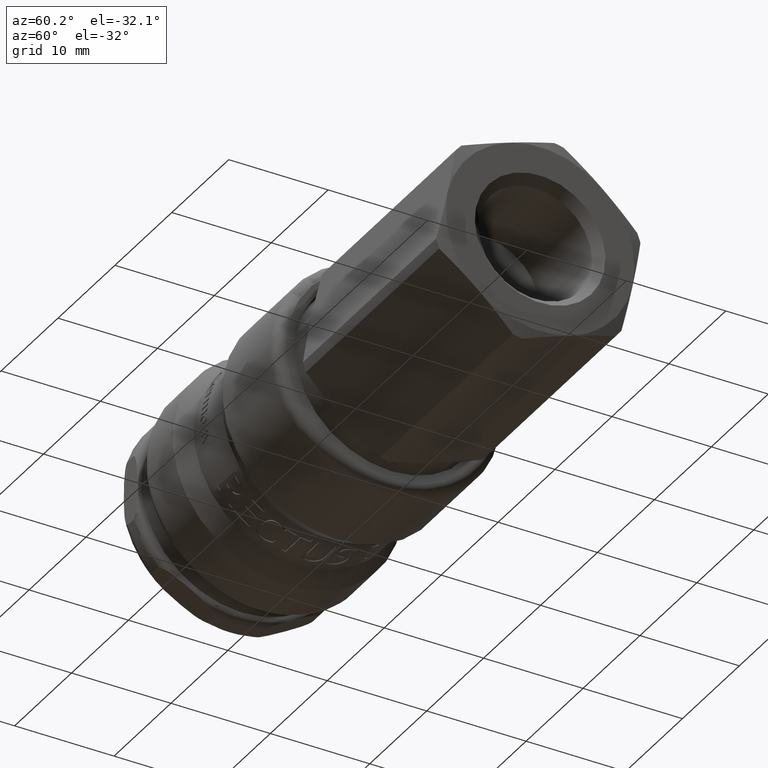
[diagram: clean part render]
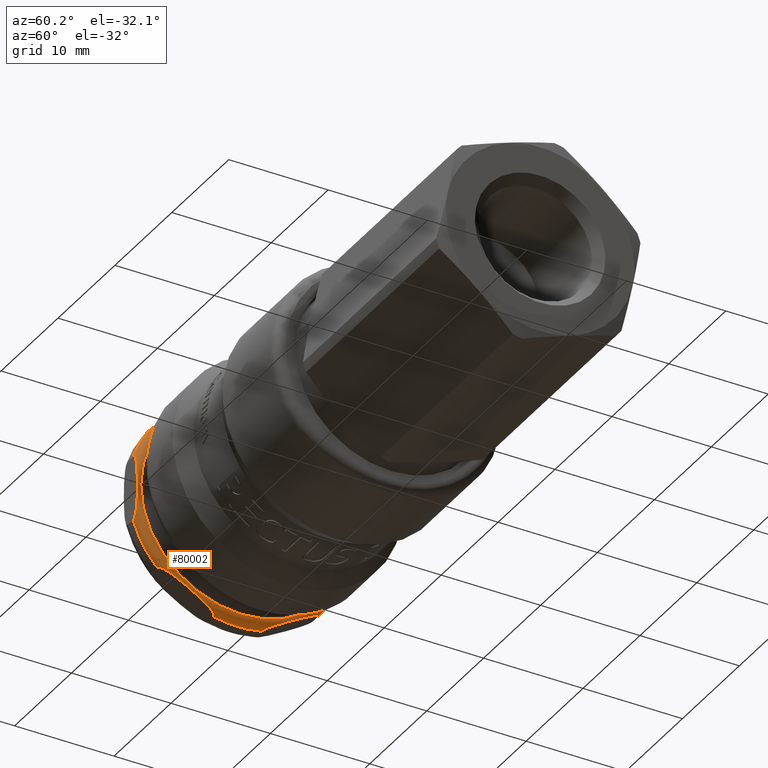
[diagram: same view with one face highlighted and labeled with its STEP entity id]
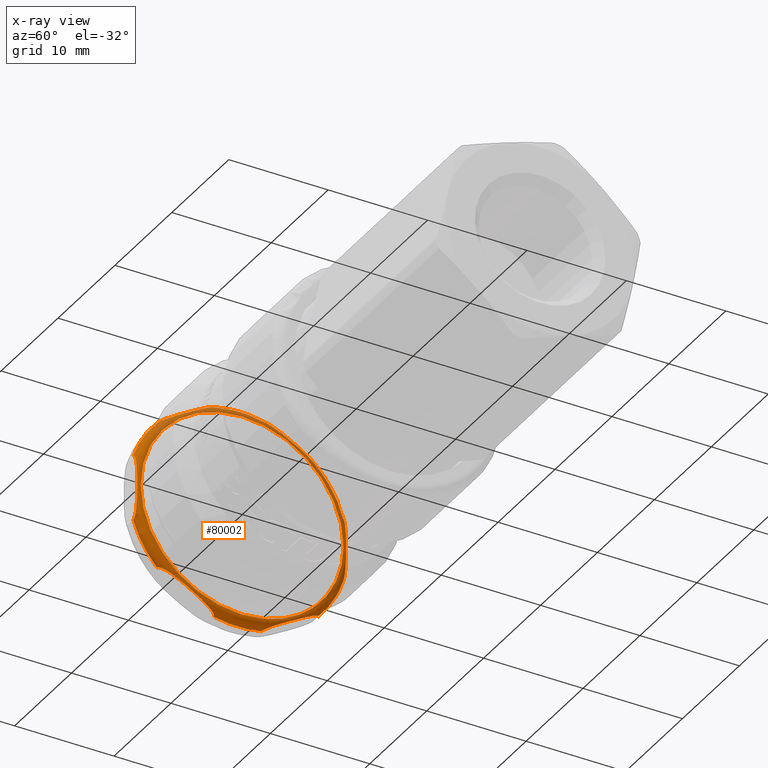
[diagram: x-ray of the same camera — body ghosted, the highlighted face saturated]
A machine part, auxiliary view. The second image highlights one B-rep face of the part: STEP entity #80002.
The next image is the same camera in x-ray: the body ghosted, the highlighted face saturated — about 35% of this face is hidden behind the body in this view.
In plain terms, the highlighted toroidal blend (fillet) surface has major radius 10.2 mm and minor (blend) radius 0.8 mm.
Its self-contained STEP definition (entity closure, byte-faithful):
#79319=CARTESIAN_POINT('',(2.5,10.199999999999999,-2.498279E-015));
#79320=VERTEX_POINT('',#79319);
#79321=CARTESIAN_POINT('',(2.5,0.0,0.0));
#79322=DIRECTION('',(-1.0,0.0,0.0));
#79323=DIRECTION('',(0.0,-1.0,0.0));
#79324=AXIS2_PLACEMENT_3D('',#79321,#79322,#79323);
#79325=CIRCLE('',#79324,10.199999999999999);
#79326=EDGE_CURVE('',#79320,#79320,#79325,.T.);
#79358=CARTESIAN_POINT('',(1.7,2.410545827099859,-10.732626370812106));
#79359=VERTEX_POINT('',#79358);
#79366=CARTESIAN_POINT('',(1.7,-2.410545827099867,-10.732626370812106));
#79367=VERTEX_POINT('',#79366);
#79368=CARTESIAN_POINT('',(1.7,0.0,0.0));
#79369=DIRECTION('',(1.0,0.0,0.0));
#79370=DIRECTION('',(0.0,-1.0,0.0));
#79371=AXIS2_PLACEMENT_3D('',#79368,#79369,#79370);
#79372=CIRCLE('',#79371,11.0);
#79373=EDGE_CURVE('',#79367,#79359,#79372,.T.);
#79432=CARTESIAN_POINT('',(1.7,10.500000000000004,3.278719262150996));
#79433=VERTEX_POINT('',#79432);
#79440=CARTESIAN_POINT('',(1.7,10.500000000000004,-3.278719262150996));
#79441=VERTEX_POINT('',#79440);
#79442=CARTESIAN_POINT('',(1.7,10.500000000000004,-3.278719262150996));
#79443=CARTESIAN_POINT('',(1.722104467915271,10.500000000000004,-3.278719262150996));
#79444=CARTESIAN_POINT('',(1.748334382194518,10.500000000000004,-3.274771300712466));
#79445=CARTESIAN_POINT('',(1.793965826045357,10.500000000000004,-3.261374599091501));
#79446=CARTESIAN_POINT('',(1.821634946150617,10.500000000000004,-3.24843931087496));
#79447=CARTESIAN_POINT('',(1.910997444381834,10.500000000000004,-3.193187925023123));
#79448=CARTESIAN_POINT('',(1.972605022011149,10.500000000000004,-3.120173886764248));
#79449=CARTESIAN_POINT('',(2.103238507919768,10.500000000000004,-2.919047819138348));
#79450=CARTESIAN_POINT('',(2.169564088821497,10.500000000000004,-2.73859163161482));
#79451=CARTESIAN_POINT('',(2.325754557692284,10.500000000000004,-2.191493105213071));
#79452=CARTESIAN_POINT('',(2.37396794591144,10.500000000000004,-1.749150668261575));
#79453=CARTESIAN_POINT('',(2.433358688630659,10.500000000000004,-0.857870751619871));
#79454=CARTESIAN_POINT('',(2.441619848709565,10.500000000000004,-0.408741346034071));
#79455=CARTESIAN_POINT('',(2.441619848709565,10.500000000000004,0.408741346034071));
#79456=CARTESIAN_POINT('',(2.433358688630659,10.500000000000004,0.857870751619871));
#79457=CARTESIAN_POINT('',(2.37396794591144,10.500000000000004,1.749150668261575));
#79458=CARTESIAN_POINT('',(2.325754557692284,10.500000000000004,2.191493105213071));
#79459=CARTESIAN_POINT('',(2.169564088821497,10.500000000000004,2.73859163161482));
#79460=CARTESIAN_POINT('',(2.103238507919768,10.500000000000004,2.919047819138348));
#79461=CARTESIAN_POINT('',(1.972605022011149,10.500000000000004,3.120173886764248));
#79462=CARTESIAN_POINT('',(1.910997444381834,10.500000000000004,3.193187925023123));
#79463=CARTESIAN_POINT('',(1.821634946150617,10.500000000000004,3.24843931087496));
#79464=CARTESIAN_POINT('',(1.793965826045357,10.500000000000004,3.261374599091501));
#79465=CARTESIAN_POINT('',(1.748334382194518,10.500000000000004,3.274771300712466));
#79466=CARTESIAN_POINT('',(1.72210446791527,10.500000000000004,3.278719262150996));
#79467=CARTESIAN_POINT('',(1.7,10.500000000000004,3.278719262150996));
#79468=B_SPLINE_CURVE_WITH_KNOTS('',3,(#79442,#79443,#79444,#79445,#79446,#79447,#79448,#79449,#79450,#79451,#79452,#79453,#79454,#79455,#79456,#79457,#79458,#79459,#79460,#79461,#79462,#79463,#79464,#79465,#79466,#79467),.UNSPECIFIED.,.F.,.U.,(4,2,2,2,2,2,2,2,2,2,2,2,4),(0.331459991565857,0.338091331940438,0.345727192601835,0.369610428621348,0.417675175511272,0.540297579321493,0.662919983131714,0.785542386941935,0.908164790752156,0.956229537642079,0.980112773661593,0.987748634322989,0.994379974697571),.UNSPECIFIED.);
#79469=EDGE_CURVE('',#79441,#79433,#79468,.T.);
#79699=CARTESIAN_POINT('',(1.7,-8.089454172900142,-7.4539071086611));
#79700=VERTEX_POINT('',#79699);
#79707=CARTESIAN_POINT('',(1.7,-10.500000000000004,-3.278719262150994));
#79708=VERTEX_POINT('',#79707);
#79709=CARTESIAN_POINT('',(1.7,0.0,0.0));
#79710=DIRECTION('',(1.0,0.0,0.0));
#79711=DIRECTION('',(0.0,-1.0,0.0));
#79712=AXIS2_PLACEMENT_3D('',#79709,#79710,#79711);
#79713=CIRCLE('',#79712,11.0);
#79714=EDGE_CURVE('',#79708,#79700,#79713,.T.);
#79731=CARTESIAN_POINT('',(1.7,-10.500000000000004,3.278719262150998));
#79732=VERTEX_POINT('',#79731);
#79739=CARTESIAN_POINT('',(1.7,-8.089454172900133,7.453907108661113));
#79740=VERTEX_POINT('',#79739);
#79741=CARTESIAN_POINT('',(1.7,0.0,0.0));
#79742=DIRECTION('',(1.0,0.0,0.0));
#79743=DIRECTION('',(0.0,-1.0,0.0));
#79744=AXIS2_PLACEMENT_3D('',#79741,#79742,#79743);
#79745=CIRCLE('',#79744,11.0);
#79746=EDGE_CURVE('',#79740,#79732,#79745,.T.);
#79763=CARTESIAN_POINT('',(1.7,-2.410545827099866,10.732626370812106));
#79764=VERTEX_POINT('',#79763);
#79771=CARTESIAN_POINT('',(1.7,2.410545827099862,10.732626370812108));
#79772=VERTEX_POINT('',#79771);
#79773=CARTESIAN_POINT('',(1.7,0.0,0.0));
#79774=DIRECTION('',(1.0,0.0,0.0));
#79775=DIRECTION('',(0.0,-1.0,0.0));
#79776=AXIS2_PLACEMENT_3D('',#79773,#79774,#79775);
#79777=CIRCLE('',#79776,11.0);
#79778=EDGE_CURVE('',#79772,#79764,#79777,.T.);
#79795=CARTESIAN_POINT('',(1.7,8.08945417290014,7.453907108661104));
#79796=VERTEX_POINT('',#79795);
#79803=CARTESIAN_POINT('',(1.7,0.0,0.0));
#79804=DIRECTION('',(1.0,0.0,0.0));
#79805=DIRECTION('',(0.0,-1.0,0.0));
#79806=AXIS2_PLACEMENT_3D('',#79803,#79804,#79805);
#79807=CIRCLE('',#79806,11.0);
#79808=EDGE_CURVE('',#79433,#79796,#79807,.T.);
#79820=CARTESIAN_POINT('',(1.7,8.089454172900128,-7.453907108661117));
#79821=VERTEX_POINT('',#79820);
#79830=CARTESIAN_POINT('',(1.7,0.0,0.0));
#79831=DIRECTION('',(1.0,0.0,0.0));
#79832=DIRECTION('',(0.0,-1.0,0.0));
#79833=AXIS2_PLACEMENT_3D('',#79830,#79831,#79832);
#79834=CIRCLE('',#79833,11.0);
#79835=EDGE_CURVE('',#79821,#79441,#79834,.T.);
#79840=CARTESIAN_POINT('',(1.7,0.0,0.0));
#79841=DIRECTION('',(1.0,0.0,0.0));
#79842=DIRECTION('',(0.0,0.0,-1.0));
#79843=AXIS2_PLACEMENT_3D('',#79840,#79841,#79842);
#79844=TOROIDAL_SURFACE('',#79843,10.199999999999999,0.8);
#79845=CARTESIAN_POINT('',(1.7,2.410545827099861,-10.732626370812108));
#79846=CARTESIAN_POINT('',(1.722104467915273,2.410545827099861,-10.732626370812108));
#79847=CARTESIAN_POINT('',(1.748334382194523,2.413964861998786,-10.730652390092843));
#79848=CARTESIAN_POINT('',(1.79396582604536,2.425566745929463,-10.72395403928236));
#79849=CARTESIAN_POINT('',(1.821634946150619,2.436769034130256,-10.717486395174094));
#79850=CARTESIAN_POINT('',(1.910997444381835,2.484618137872244,-10.689860702248176));
#79851=CARTESIAN_POINT('',(1.972605022011146,2.547850149837322,-10.653353683118736));
#79852=CARTESIAN_POINT('',(2.103238507919766,2.722030433764617,-10.552790649305786));
#79853=CARTESIAN_POINT('',(2.169564088821497,2.878310076430077,-10.462562555544023));
#79854=CARTESIAN_POINT('',(2.325754557692284,3.352111298667023,-10.18901329234315));
#79855=CARTESIAN_POINT('',(2.373967945911438,3.735191086238937,-9.967842073867404));
#79856=CARTESIAN_POINT('',(2.433358688630657,4.507062135933532,-9.52220211554655));
#79857=CARTESIAN_POINT('',(2.441619848709565,4.896019610757443,-9.29763741275365));
#79858=CARTESIAN_POINT('',(2.441619848709565,5.603980389242547,-8.888896066719578));
#79859=CARTESIAN_POINT('',(2.433358688630658,5.992937864066455,-8.664331363926676));
#79860=CARTESIAN_POINT('',(2.373967945911438,6.764808913761051,-8.218691405605824));
#79861=CARTESIAN_POINT('',(2.325754557692284,7.147888701332964,-7.997520187130075));
#79862=CARTESIAN_POINT('',(2.169564088821496,7.62168992356991,-7.723970923929201));
#79863=CARTESIAN_POINT('',(2.103238507919766,7.777969566235371,-7.63374283016744));
#79864=CARTESIAN_POINT('',(1.972605022011146,7.952149850162665,-7.53317979635449));
#79865=CARTESIAN_POINT('',(1.910997444381835,8.015381862127743,-7.49667277722505));
#79866=CARTESIAN_POINT('',(1.821634946150619,8.063230965869732,-7.469047084299132));
#79867=CARTESIAN_POINT('',(1.79396582604536,8.074433254070524,-7.462579440190863));
#79868=CARTESIAN_POINT('',(1.748334382194523,8.086035138001201,-7.45588108938038));
#79869=CARTESIAN_POINT('',(1.722104467915273,8.089454172900124,-7.45390710866112));
#79870=CARTESIAN_POINT('',(1.7,8.089454172900124,-7.45390710866112));
#79871=B_SPLINE_CURVE_WITH_KNOTS('',3,(#79845,#79846,#79847,#79848,#79849,#79850,#79851,#79852,#79853,#79854,#79855,#79856,#79857,#79858,#79859,#79860,#79861,#79862,#79863,#79864,#79865,#79866,#79867,#79868,#79869,#79870),.UNSPECIFIED.,.F.,.U.,(4,2,2,2,2,2,2,2,2,2,2,2,4),(0.331459991565857,0.338091331940439,0.345727192601835,0.369610428621349,0.417675175511271,0.540297579321493,0.662919983131714,0.785542386941936,0.908164790752157,0.95622953764208,0.980112773661594,0.98774863432299,0.994379974697571),.UNSPECIFIED.);
#79872=EDGE_CURVE('',#79359,#79821,#79871,.T.);
#79873=ORIENTED_EDGE('',*,*,#79872,.T.);
#79874=ORIENTED_EDGE('',*,*,#79835,.T.);
#79875=ORIENTED_EDGE('',*,*,#79469,.T.);
#79876=ORIENTED_EDGE('',*,*,#79808,.T.);
#79877=CARTESIAN_POINT('',(1.7,8.089454172900139,7.453907108661106));
#79878=CARTESIAN_POINT('',(1.72210446791527,8.089454172900139,7.453907108661106));
#79879=CARTESIAN_POINT('',(1.748334382194517,8.086035138001211,7.45588108938037));
#79880=CARTESIAN_POINT('',(1.793965826045356,8.074433254070536,7.462579440190852));
#79881=CARTESIAN_POINT('',(1.821634946150617,8.063230965869737,7.469047084299123));
#79882=CARTESIAN_POINT('',(1.910997444381833,8.01538186212775,7.496672777225042));
#79883=CARTESIAN_POINT('',(1.972605022011148,7.952149850162675,7.533179796354478));
#79884=CARTESIAN_POINT('',(2.103238507919768,7.777969566235381,7.633742830167428));
#79885=CARTESIAN_POINT('',(2.169564088821497,7.621689923569917,7.723970923929192));
#79886=CARTESIAN_POINT('',(2.325754557692286,7.147888701332972,7.997520187130068));
#79887=CARTESIAN_POINT('',(2.373967945911438,6.764808913761058,8.218691405605817));
#79888=CARTESIAN_POINT('',(2.433358688630657,5.992937864066462,8.664331363926671));
#79889=CARTESIAN_POINT('',(2.441619848709565,5.603980389242555,8.888896066719571));
#79890=CARTESIAN_POINT('',(2.441619848709565,4.896019610757451,9.297637412753643));
#79891=CARTESIAN_POINT('',(2.433358688630658,4.50706213593354,9.522202115546545));
#79892=CARTESIAN_POINT('',(2.373967945911439,3.735191086238945,9.967842073867399));
#79893=CARTESIAN_POINT('',(2.325754557692286,3.352111298667032,10.189013292343144));
#79894=CARTESIAN_POINT('',(2.169564088821497,2.878310076430084,10.462562555544022));
#79895=CARTESIAN_POINT('',(2.103238507919768,2.722030433764622,10.552790649305786));
#79896=CARTESIAN_POINT('',(1.972605022011149,2.547850149837326,10.653353683118734));
#79897=CARTESIAN_POINT('',(1.910997444381833,2.484618137872252,10.68986070224817));
#79898=CARTESIAN_POINT('',(1.821634946150617,2.436769034130264,10.71748639517409));
#79899=CARTESIAN_POINT('',(1.793965826045356,2.425566745929467,10.72395403928236));
#79900=CARTESIAN_POINT('',(1.748334382194517,2.413964861998791,10.730652390092841));
#79901=CARTESIAN_POINT('',(1.72210446791527,2.410545827099863,10.732626370812108));
#79902=CARTESIAN_POINT('',(1.7,2.410545827099863,10.732626370812108));
#79903=B_SPLINE_CURVE_WITH_KNOTS('',3,(#79877,#79878,#79879,#79880,#79881,#79882,#79883,#79884,#79885,#79886,#79887,#79888,#79889,#79890,#79891,#79892,#79893,#79894,#79895,#79896,#79897,#79898,#79899,#79900,#79901,#79902),.UNSPECIFIED.,.F.,.U.,(4,2,2,2,2,2,2,2,2,2,2,2,4),(0.331459991565857,0.338091331940438,0.345727192601835,0.369610428621349,0.417675175511272,0.540297579321493,0.662919983131715,0.785542386941936,0.908164790752158,0.956229537642081,0.980112773661594,0.987748634322991,0.994379974697572),.UNSPECIFIED.);
#79904=EDGE_CURVE('',#79796,#79772,#79903,.T.);
#79905=ORIENTED_EDGE('',*,*,#79904,.T.);
#79906=ORIENTED_EDGE('',*,*,#79778,.T.);
#79907=CARTESIAN_POINT('',(1.7,-2.410545827099865,10.732626370812106));
#79908=CARTESIAN_POINT('',(1.722104467915271,-2.410545827099865,10.732626370812106));
#79909=CARTESIAN_POINT('',(1.748334382194519,-2.413964861998794,10.730652390092843));
#79910=CARTESIAN_POINT('',(1.793965826045358,-2.425566745929469,10.72395403928236));
#79911=CARTESIAN_POINT('',(1.821634946150617,-2.436769034130268,10.71748639517409));
#79912=CARTESIAN_POINT('',(1.910997444381834,-2.484618137872255,10.68986070224817));
#79913=CARTESIAN_POINT('',(1.972605022011148,-2.54785014983733,10.653353683118731));
#79914=CARTESIAN_POINT('',(2.103238507919766,-2.722030433764624,10.552790649305784));
#79915=CARTESIAN_POINT('',(2.169564088821498,-2.878310076430084,10.462562555544023));
#79916=CARTESIAN_POINT('',(2.325754557692286,-3.35211129866703,10.18901329234315));
#79917=CARTESIAN_POINT('',(2.373967945911439,-3.735191086238943,9.967842073867399));
#79918=CARTESIAN_POINT('',(2.433358688630658,-4.507062135933539,9.522202115546545));
#79919=CARTESIAN_POINT('',(2.441619848709565,-4.896019610757447,9.297637412753645));
#79920=CARTESIAN_POINT('',(2.441619848709565,-5.603980389242551,8.888896066719575));
#79921=CARTESIAN_POINT('',(2.433358688630657,-5.992937864066459,8.664331363926673));
#79922=CARTESIAN_POINT('',(2.373967945911438,-6.764808913761056,8.218691405605819));
#79923=CARTESIAN_POINT('',(2.325754557692286,-7.147888701332969,7.99752018713007));
#79924=CARTESIAN_POINT('',(2.169564088821498,-7.621689923569914,7.723970923929197));
#79925=CARTESIAN_POINT('',(2.103238507919767,-7.777969566235376,7.633742830167435));
#79926=CARTESIAN_POINT('',(1.972605022011148,-7.952149850162669,7.533179796354485));
#79927=CARTESIAN_POINT('',(1.910997444381833,-8.015381862127743,7.496672777225049));
#79928=CARTESIAN_POINT('',(1.821634946150617,-8.063230965869732,7.469047084299129));
#79929=CARTESIAN_POINT('',(1.793965826045358,-8.074433254070529,7.46257944019086));
#79930=CARTESIAN_POINT('',(1.748334382194519,-8.086035138001204,7.455881089380378));
#79931=CARTESIAN_POINT('',(1.722104467915271,-8.089454172900135,7.45390710866111));
#79932=CARTESIAN_POINT('',(1.7,-8.089454172900135,7.45390710866111));
#79933=B_SPLINE_CURVE_WITH_KNOTS('',3,(#79907,#79908,#79909,#79910,#79911,#79912,#79913,#79914,#79915,#79916,#79917,#79918,#79919,#79920,#79921,#79922,#79923,#79924,#79925,#79926,#79927,#79928,#79929,#79930,#79931,#79932),.UNSPECIFIED.,.F.,.U.,(4,2,2,2,2,2,2,2,2,2,2,2,4),(0.331459991565857,0.338091331940438,0.345727192601835,0.369610428621348,0.417675175511271,0.540297579321492,0.662919983131714,0.785542386941935,0.908164790752157,0.95622953764208,0.980112773661593,0.987748634322989,0.994379974697571),.UNSPECIFIED.);
#79934=EDGE_CURVE('',#79764,#79740,#79933,.T.);
#79935=ORIENTED_EDGE('',*,*,#79934,.T.);
#79936=ORIENTED_EDGE('',*,*,#79746,.T.);
#79937=CARTESIAN_POINT('',(1.7,-10.5,3.278719262151005));
#79938=CARTESIAN_POINT('',(1.722104467915271,-10.5,3.278719262151005));
#79939=CARTESIAN_POINT('',(1.748334382194518,-10.500000000000004,3.274771300712468));
#79940=CARTESIAN_POINT('',(1.793965826045357,-10.500000000000004,3.261374599091504));
#79941=CARTESIAN_POINT('',(1.821634946150617,-10.500000000000004,3.248439310874962));
#79942=CARTESIAN_POINT('',(1.910997444381834,-10.500000000000004,3.193187925023124));
#79943=CARTESIAN_POINT('',(1.972605022011149,-10.500000000000004,3.12017388676425));
#79944=CARTESIAN_POINT('',(2.103238507919768,-10.500000000000004,2.91904781913835));
#79945=CARTESIAN_POINT('',(2.169564088821498,-10.500000000000004,2.738591631614822));
#79946=CARTESIAN_POINT('',(2.325754557692284,-10.500000000000004,2.191493105213072));
#79947=CARTESIAN_POINT('',(2.373967945911441,-10.500000000000004,1.749150668261577));
#79948=CARTESIAN_POINT('',(2.433358688630659,-10.500000000000004,0.857870751619872));
#79949=CARTESIAN_POINT('',(2.441619848709565,-10.500000000000004,0.408741346034072));
#79950=CARTESIAN_POINT('',(2.441619848709565,-10.500000000000004,-0.408741346034069));
#79951=CARTESIAN_POINT('',(2.433358688630659,-10.500000000000004,-0.857870751619869));
#79952=CARTESIAN_POINT('',(2.373967945911441,-10.500000000000004,-1.749150668261574));
#79953=CARTESIAN_POINT('',(2.325754557692284,-10.500000000000004,-2.191493105213069));
#79954=CARTESIAN_POINT('',(2.169564088821498,-10.500000000000004,-2.738591631614819));
#79955=CARTESIAN_POINT('',(2.103238507919768,-10.500000000000004,-2.919047819138347));
#79956=CARTESIAN_POINT('',(1.972605022011149,-10.500000000000004,-3.120173886764246));
#79957=CARTESIAN_POINT('',(1.910997444381833,-10.500000000000004,-3.193187925023121));
#79958=CARTESIAN_POINT('',(1.821634946150617,-10.500000000000004,-3.248439310874959));
#79959=CARTESIAN_POINT('',(1.793965826045357,-10.500000000000004,-3.2613745990915));
#79960=CARTESIAN_POINT('',(1.748334382194518,-10.500000000000004,-3.274771300712465));
#79961=CARTESIAN_POINT('',(1.72210446791527,-10.500000000000004,-3.278719262150994));
#79962=CARTESIAN_POINT('',(1.7,-10.500000000000004,-3.278719262150994));
#79963=B_SPLINE_CURVE_WITH_KNOTS('',3,(#79937,#79938,#79939,#79940,#79941,#79942,#79943,#79944,#79945,#79946,#79947,#79948,#79949,#79950,#79951,#79952,#79953,#79954,#79955,#79956,#79957,#79958,#79959,#79960,#79961,#79962),.UNSPECIFIED.,.F.,.U.,(4,2,2,2,2,2,2,2,2,2,2,2,4),(0.331459991565857,0.338091331940438,0.345727192601835,0.369610428621348,0.417675175511271,0.540297579321493,0.662919983131714,0.785542386941935,0.908164790752156,0.956229537642079,0.980112773661593,0.987748634322989,0.994379974697571),.UNSPECIFIED.);
#79964=EDGE_CURVE('',#79732,#79708,#79963,.T.);
#79965=ORIENTED_EDGE('',*,*,#79964,.T.);
#79966=ORIENTED_EDGE('',*,*,#79714,.T.);
#79967=CARTESIAN_POINT('',(1.7,-8.089454172900139,-7.453907108661103));
#79968=CARTESIAN_POINT('',(1.72210446791527,-8.089454172900139,-7.453907108661103));
#79969=CARTESIAN_POINT('',(1.748334382194517,-8.086035138001215,-7.455881089380365));
#79970=CARTESIAN_POINT('',(1.793965826045356,-8.074433254070538,-7.462579440190847));
#79971=CARTESIAN_POINT('',(1.821634946150616,-8.063230965869741,-7.469047084299119));
#79972=CARTESIAN_POINT('',(1.910997444381835,-8.015381862127754,-7.496672777225037));
#79973=CARTESIAN_POINT('',(1.972605022011149,-7.952149850162675,-7.533179796354476));
#79974=CARTESIAN_POINT('',(2.103238507919769,-7.777969566235377,-7.633742830167428));
#79975=CARTESIAN_POINT('',(2.1695640888215,-7.621689923569914,-7.723970923929192));
#79976=CARTESIAN_POINT('',(2.325754557692286,-7.147888701332967,-7.997520187130069));
#79977=CARTESIAN_POINT('',(2.37396794591144,-6.764808913761057,-8.218691405605815));
#79978=CARTESIAN_POINT('',(2.433358688630658,-5.992937864066463,-8.664331363926669));
#79979=CARTESIAN_POINT('',(2.441619848709566,-5.603980389242556,-8.888896066719568));
#79980=CARTESIAN_POINT('',(2.441619848709566,-4.896019610757454,-9.297637412753639));
#79981=CARTESIAN_POINT('',(2.433358688630658,-4.507062135933548,-9.522202115546541));
#79982=CARTESIAN_POINT('',(2.37396794591144,-3.735191086238955,-9.967842073867395));
#79983=CARTESIAN_POINT('',(2.325754557692286,-3.352111298667044,-10.189013292343141));
#79984=CARTESIAN_POINT('',(2.1695640888215,-2.878310076430097,-10.462562555544014));
#79985=CARTESIAN_POINT('',(2.103238507919769,-2.722030433764634,-10.552790649305779));
#79986=CARTESIAN_POINT('',(1.972605022011149,-2.547850149837336,-10.653353683118731));
#79987=CARTESIAN_POINT('',(1.910997444381835,-2.484618137872257,-10.689860702248168));
#79988=CARTESIAN_POINT('',(1.821634946150616,-2.436769034130268,-10.717486395174088));
#79989=CARTESIAN_POINT('',(1.793965826045356,-2.425566745929471,-10.72395403928236));
#79990=CARTESIAN_POINT('',(1.748334382194517,-2.413964861998795,-10.730652390092841));
#79991=CARTESIAN_POINT('',(1.72210446791527,-2.410545827099868,-10.732626370812106));
#79992=CARTESIAN_POINT('',(1.7,-2.410545827099868,-10.732626370812106));
#79993=B_SPLINE_CURVE_WITH_KNOTS('',3,(#79967,#79968,#79969,#79970,#79971,#79972,#79973,#79974,#79975,#79976,#79977,#79978,#79979,#79980,#79981,#79982,#79983,#79984,#79985,#79986,#79987,#79988,#79989,#79990,#79991,#79992),.UNSPECIFIED.,.F.,.U.,(4,2,2,2,2,2,2,2,2,2,2,2,4),(0.331459991565857,0.338091331940438,0.345727192601835,0.369610428621349,0.417675175511273,0.540297579321494,0.662919983131715,0.785542386941936,0.908164790752157,0.95622953764208,0.980112773661594,0.987748634322991,0.994379974697572),.UNSPECIFIED.);
#79994=EDGE_CURVE('',#79700,#79367,#79993,.T.);
#79995=ORIENTED_EDGE('',*,*,#79994,.T.);
#79996=ORIENTED_EDGE('',*,*,#79373,.T.);
#79997=EDGE_LOOP('',(#79873,#79874,#79875,#79876,#79905,#79906,#79935,#79936,#79965,#79966,#79995,#79996));
#79998=FACE_OUTER_BOUND('',#79997,.T.);
#79999=ORIENTED_EDGE('',*,*,#79326,.T.);
#80000=EDGE_LOOP('',(#79999));
#80001=FACE_BOUND('',#80000,.T.);
#80002=ADVANCED_FACE('',(#79998,#80001),#79844,.T.);